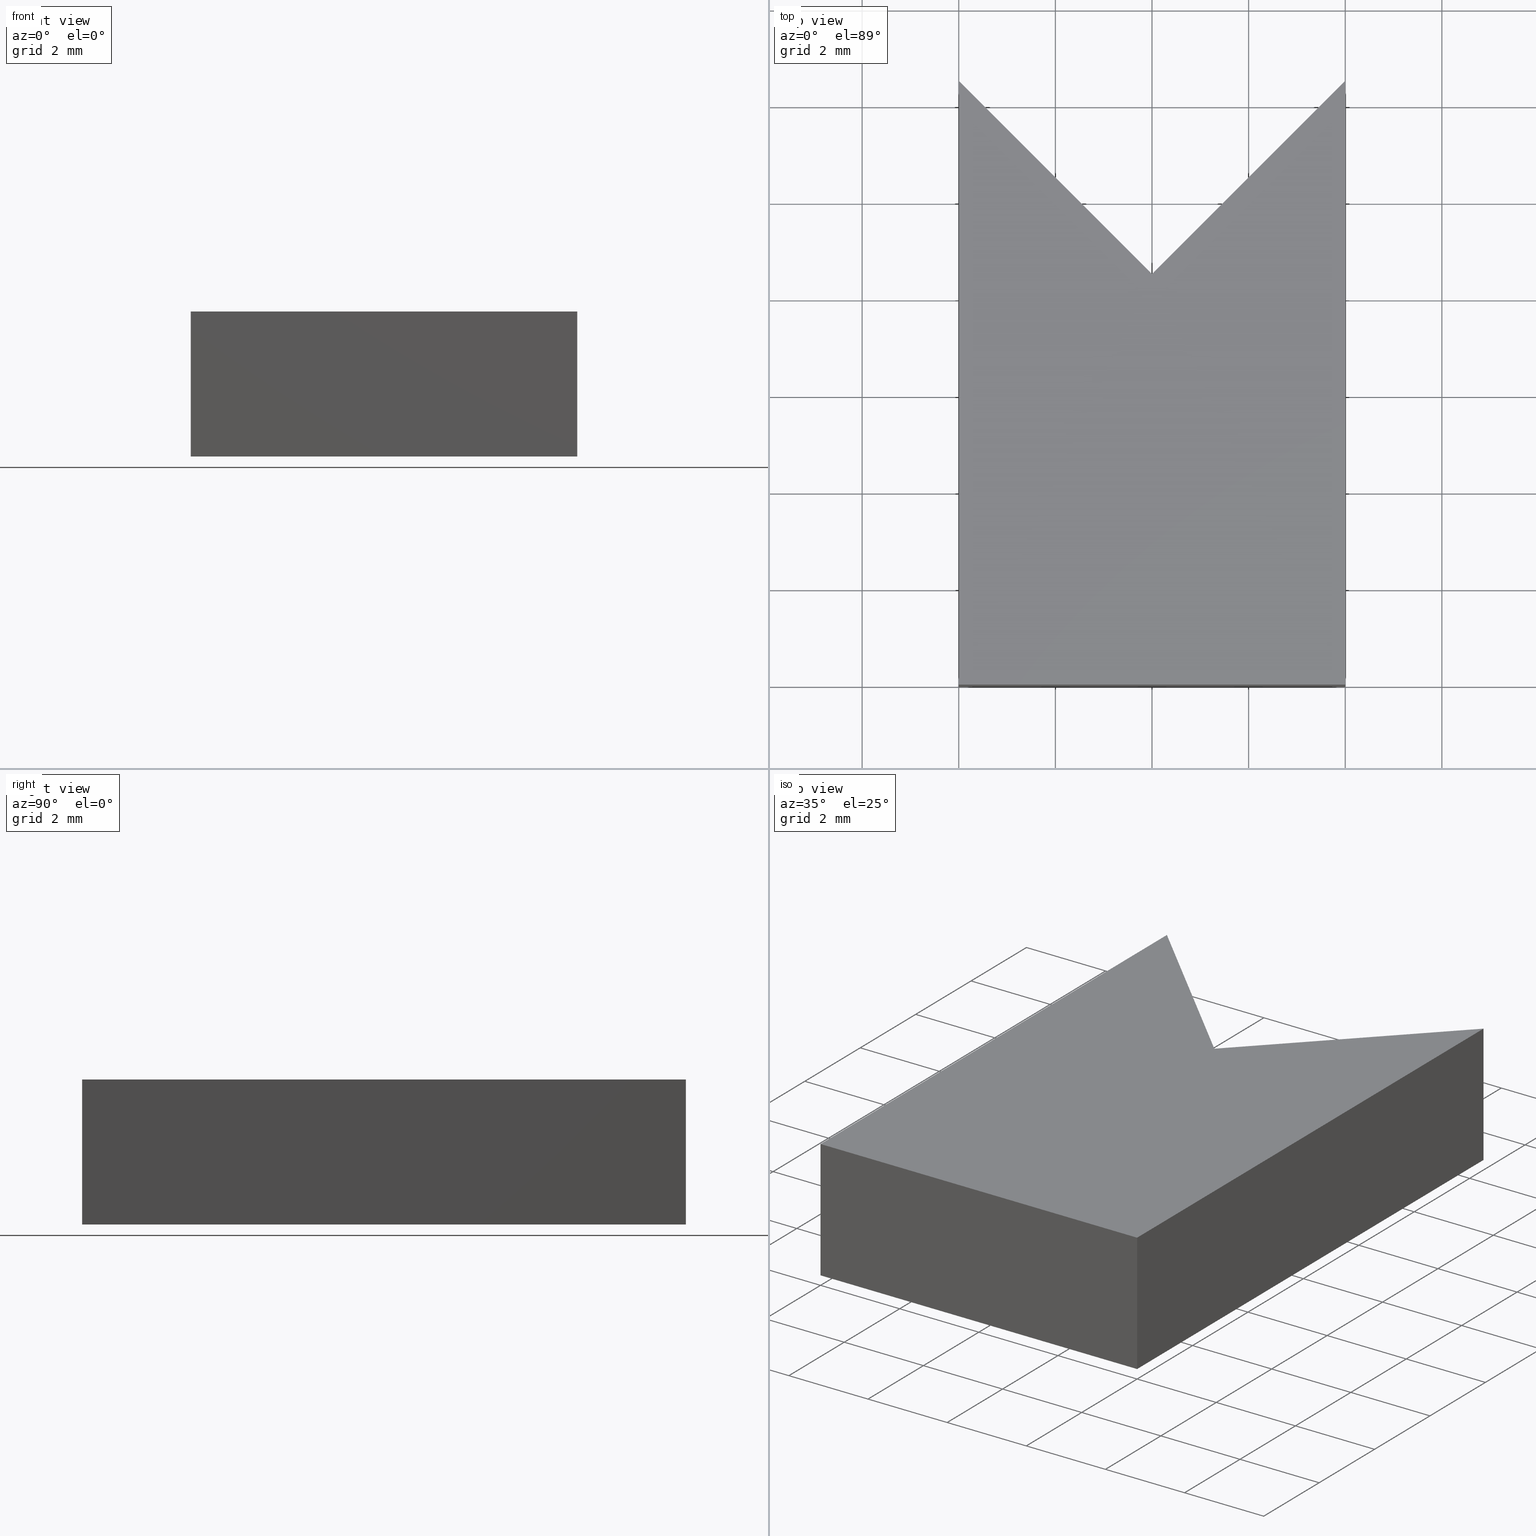
[diagram: canonical four-view strip — front | top / right | iso, engineering-drawing reading convention]
A machine part, canonical four-view strip (front | top / right | iso — engineering-drawing reading convention). The complete STEP part file that produces these views, byte-faithful:
ISO-10303-21;
HEADER;
/* Generated by software containing ST-Developer
 * from STEP Tools, Inc. (www.steptools.com) 
 */

FILE_DESCRIPTION(
/* description */ (''),
/* implementation_level */ '2;1');

FILE_NAME(
/* name */ 
'H:\\Eigene Dateien\\CAD Workspace Vault\\CAD\\E_3_Nocken\\E_3_01_Aufs
chwei\X\DFnocke\\10_Nut\\E_3_01_10_18_00_WKZ-0020.stp',
/* time_stamp */ '2024-06-07T13:04:42+02:00',
/* author */ ('DFischer'),
/* organization */ (''),
/* preprocessor_version */ 'ST-DEVELOPER v18.1',
/* originating_system */ 'Autodesk Inventor 2021',
/* authorisation */ '');

FILE_SCHEMA (('AUTOMOTIVE_DESIGN { 1 0 10303 214 3 1 1 }'));
ENDSEC;

DATA;
#10=MECHANICAL_DESIGN_GEOMETRIC_PRESENTATION_REPRESENTATION('',(#14,#15),
#223);
#11=SHAPE_REPRESENTATION_RELATIONSHIP('SRR','None',#230,#12);
#12=ADVANCED_BREP_SHAPE_REPRESENTATION('',(#13),#222);
#13=MANIFOLD_SOLID_BREP('Volumenk\X\F6rper1',#129);
#14=STYLED_ITEM('',(#240),#127);
#15=STYLED_ITEM('',(#239),#13);
#16=FACE_OUTER_BOUND('',#23,.T.);
#17=FACE_OUTER_BOUND('',#24,.T.);
#18=FACE_OUTER_BOUND('',#25,.T.);
#19=FACE_OUTER_BOUND('',#26,.T.);
#20=FACE_OUTER_BOUND('',#27,.T.);
#21=FACE_OUTER_BOUND('',#28,.T.);
#22=FACE_OUTER_BOUND('',#29,.T.);
#23=EDGE_LOOP('',(#85,#86,#87,#88,#89));
#24=EDGE_LOOP('',(#90,#91,#92,#93));
#25=EDGE_LOOP('',(#94,#95,#96,#97));
#26=EDGE_LOOP('',(#98,#99,#100,#101));
#27=EDGE_LOOP('',(#102,#103,#104,#105));
#28=EDGE_LOOP('',(#106,#107,#108,#109));
#29=EDGE_LOOP('',(#110,#111,#112,#113,#114));
#30=LINE('',#191,#45);
#31=LINE('',#193,#46);
#32=LINE('',#195,#47);
#33=LINE('',#197,#48);
#34=LINE('',#198,#49);
#35=LINE('',#202,#50);
#36=LINE('',#203,#51);
#37=LINE('',#204,#52);
#38=LINE('',#207,#53);
#39=LINE('',#208,#54);
#40=LINE('',#211,#55);
#41=LINE('',#212,#56);
#42=LINE('',#215,#57);
#43=LINE('',#216,#58);
#44=LINE('',#218,#59);
#45=VECTOR('',#160,10.);
#46=VECTOR('',#161,10.);
#47=VECTOR('',#162,10.);
#48=VECTOR('',#163,10.);
#49=VECTOR('',#164,10.);
#50=VECTOR('',#167,10.);
#51=VECTOR('',#168,10.);
#52=VECTOR('',#169,10.);
#53=VECTOR('',#172,10.);
#54=VECTOR('',#173,10.);
#55=VECTOR('',#176,10.);
#56=VECTOR('',#177,10.);
#57=VECTOR('',#180,10.);
#58=VECTOR('',#181,10.);
#59=VECTOR('',#184,10.);
#60=VERTEX_POINT('',#189);
#61=VERTEX_POINT('',#190);
#62=VERTEX_POINT('',#192);
#63=VERTEX_POINT('',#194);
#64=VERTEX_POINT('',#196);
#65=VERTEX_POINT('',#200);
#66=VERTEX_POINT('',#201);
#67=VERTEX_POINT('',#206);
#68=VERTEX_POINT('',#210);
#69=VERTEX_POINT('',#214);
#70=EDGE_CURVE('',#60,#61,#30,.T.);
#71=EDGE_CURVE('',#62,#60,#31,.T.);
#72=EDGE_CURVE('',#63,#62,#32,.T.);
#73=EDGE_CURVE('',#64,#63,#33,.T.);
#74=EDGE_CURVE('',#61,#64,#34,.T.);
#75=EDGE_CURVE('',#65,#66,#35,.T.);
#76=EDGE_CURVE('',#66,#63,#36,.T.);
#77=EDGE_CURVE('',#65,#62,#37,.T.);
#78=EDGE_CURVE('',#66,#67,#38,.T.);
#79=EDGE_CURVE('',#67,#64,#39,.T.);
#80=EDGE_CURVE('',#67,#68,#40,.T.);
#81=EDGE_CURVE('',#68,#61,#41,.T.);
#82=EDGE_CURVE('',#68,#69,#42,.T.);
#83=EDGE_CURVE('',#60,#69,#43,.T.);
#84=EDGE_CURVE('',#69,#65,#44,.T.);
#85=ORIENTED_EDGE('',*,*,#70,.F.);
#86=ORIENTED_EDGE('',*,*,#71,.F.);
#87=ORIENTED_EDGE('',*,*,#72,.F.);
#88=ORIENTED_EDGE('',*,*,#73,.F.);
#89=ORIENTED_EDGE('',*,*,#74,.F.);
#90=ORIENTED_EDGE('',*,*,#75,.T.);
#91=ORIENTED_EDGE('',*,*,#76,.T.);
#92=ORIENTED_EDGE('',*,*,#72,.T.);
#93=ORIENTED_EDGE('',*,*,#77,.F.);
#94=ORIENTED_EDGE('',*,*,#78,.T.);
#95=ORIENTED_EDGE('',*,*,#79,.T.);
#96=ORIENTED_EDGE('',*,*,#73,.T.);
#97=ORIENTED_EDGE('',*,*,#76,.F.);
#98=ORIENTED_EDGE('',*,*,#80,.T.);
#99=ORIENTED_EDGE('',*,*,#81,.T.);
#100=ORIENTED_EDGE('',*,*,#74,.T.);
#101=ORIENTED_EDGE('',*,*,#79,.F.);
#102=ORIENTED_EDGE('',*,*,#82,.T.);
#103=ORIENTED_EDGE('',*,*,#83,.F.);
#104=ORIENTED_EDGE('',*,*,#70,.T.);
#105=ORIENTED_EDGE('',*,*,#81,.F.);
#106=ORIENTED_EDGE('',*,*,#84,.T.);
#107=ORIENTED_EDGE('',*,*,#77,.T.);
#108=ORIENTED_EDGE('',*,*,#71,.T.);
#109=ORIENTED_EDGE('',*,*,#83,.T.);
#110=ORIENTED_EDGE('',*,*,#75,.F.);
#111=ORIENTED_EDGE('',*,*,#84,.F.);
#112=ORIENTED_EDGE('',*,*,#82,.F.);
#113=ORIENTED_EDGE('',*,*,#80,.F.);
#114=ORIENTED_EDGE('',*,*,#78,.F.);
#115=PLANE('',#149);
#116=PLANE('',#150);
#117=PLANE('',#151);
#118=PLANE('',#152);
#119=PLANE('',#153);
#120=PLANE('',#154);
#121=PLANE('',#155);
#122=ADVANCED_FACE('',(#16),#115,.F.);
#123=ADVANCED_FACE('',(#17),#116,.T.);
#124=ADVANCED_FACE('',(#18),#117,.T.);
#125=ADVANCED_FACE('',(#19),#118,.T.);
#126=ADVANCED_FACE('',(#20),#119,.T.);
#127=ADVANCED_FACE('',(#21),#120,.T.);
#128=ADVANCED_FACE('',(#22),#121,.T.);
#129=CLOSED_SHELL('',(#122,#123,#124,#125,#126,#127,#128));
#130=DERIVED_UNIT_ELEMENT(#132,1.);
#131=DERIVED_UNIT_ELEMENT(#225,3.);
#132=(
MASS_UNIT()
NAMED_UNIT(*)
SI_UNIT($,.GRAM.)
);
#133=DERIVED_UNIT((#130,#131));
#134=MEASURE_REPRESENTATION_ITEM('density measure',
POSITIVE_RATIO_MEASURE(8.03),#133);
#135=PROPERTY_DEFINITION_REPRESENTATION(#140,#137);
#136=PROPERTY_DEFINITION_REPRESENTATION(#141,#138);
#137=REPRESENTATION('material name',(#139),#222);
#138=REPRESENTATION('density',(#134),#222);
#139=DESCRIPTIVE_REPRESENTATION_ITEM('1.4301','1.4301');
#140=PROPERTY_DEFINITION('material property','material name',#232);
#141=PROPERTY_DEFINITION('material property','density of part',#232);
#142=DATE_TIME_ROLE('creation_date');
#143=APPLIED_DATE_AND_TIME_ASSIGNMENT(#144,#142,(#232));
#144=DATE_AND_TIME(#145,#146);
#145=CALENDAR_DATE(2011,19,10);
#146=LOCAL_TIME(0,0,0.,#147);
#147=COORDINATED_UNIVERSAL_TIME_OFFSET(0,0,.BEHIND.);
#148=AXIS2_PLACEMENT_3D('placement',#187,#156,#157);
#149=AXIS2_PLACEMENT_3D('',#188,#158,#159);
#150=AXIS2_PLACEMENT_3D('',#199,#165,#166);
#151=AXIS2_PLACEMENT_3D('',#205,#170,#171);
#152=AXIS2_PLACEMENT_3D('',#209,#174,#175);
#153=AXIS2_PLACEMENT_3D('',#213,#178,#179);
#154=AXIS2_PLACEMENT_3D('',#217,#182,#183);
#155=AXIS2_PLACEMENT_3D('',#219,#185,#186);
#156=DIRECTION('axis',(0.,0.,1.));
#157=DIRECTION('refdir',(1.,0.,0.));
#158=DIRECTION('center_axis',(0.,0.,1.));
#159=DIRECTION('ref_axis',(1.,0.,0.));
#160=DIRECTION('',(-1.77635683940025E-16,1.,0.));
#161=DIRECTION('',(1.,0.,0.));
#162=DIRECTION('',(-1.77635683940025E-16,-1.,0.));
#163=DIRECTION('',(-0.707106781186548,0.707106781186547,0.));
#164=DIRECTION('',(-0.707106781186548,-0.707106781186547,0.));
#165=DIRECTION('center_axis',(-1.,1.77635683940025E-16,0.));
#166=DIRECTION('ref_axis',(0.,0.,1.));
#167=DIRECTION('',(1.77635683940025E-16,1.,0.));
#168=DIRECTION('',(0.,0.,-1.));
#169=DIRECTION('',(0.,0.,-1.));
#170=DIRECTION('center_axis',(0.707106781186547,0.707106781186548,0.));
#171=DIRECTION('ref_axis',(0.,0.,-1.));
#172=DIRECTION('',(0.707106781186548,-0.707106781186547,0.));
#173=DIRECTION('',(0.,0.,-1.));
#174=DIRECTION('center_axis',(-0.707106781186547,0.707106781186548,0.));
#175=DIRECTION('ref_axis',(0.,0.,1.));
#176=DIRECTION('',(0.707106781186548,0.707106781186547,0.));
#177=DIRECTION('',(0.,0.,-1.));
#178=DIRECTION('center_axis',(1.,1.77635683940025E-16,0.));
#179=DIRECTION('ref_axis',(0.,0.,-1.));
#180=DIRECTION('',(1.77635683940025E-16,-1.,0.));
#181=DIRECTION('',(0.,0.,1.));
#182=DIRECTION('center_axis',(0.,-1.,0.));
#183=DIRECTION('ref_axis',(0.,0.,-1.));
#184=DIRECTION('',(-1.,0.,0.));
#185=DIRECTION('center_axis',(0.,0.,1.));
#186=DIRECTION('ref_axis',(1.,0.,0.));
#187=CARTESIAN_POINT('',(0.,0.,0.));
#188=CARTESIAN_POINT('Origin',(0.,6.20674614144833,-1.5));
#189=CARTESIAN_POINT('',(4.,-4.8888881406096E-16,-1.5));
#190=CARTESIAN_POINT('',(4.,12.5,-1.5));
#191=CARTESIAN_POINT('',(4.,12.5,-1.5));
#192=CARTESIAN_POINT('',(-4.,-4.8888881406096E-16,-1.5));
#193=CARTESIAN_POINT('',(4.,-4.8888881406096E-16,-1.5));
#194=CARTESIAN_POINT('',(-4.,12.5,-1.5));
#195=CARTESIAN_POINT('',(-4.,-4.8888881406096E-16,-1.5));
#196=CARTESIAN_POINT('',(0.,8.5,-1.5));
#197=CARTESIAN_POINT('',(-4.,12.5,-1.5));
#198=CARTESIAN_POINT('',(0.,8.5,-1.5));
#199=CARTESIAN_POINT('Origin',(-4.,-4.8888881406096E-16,0.));
#200=CARTESIAN_POINT('',(-4.,-4.8888881406096E-16,1.5));
#201=CARTESIAN_POINT('',(-4.,12.5,1.5));
#202=CARTESIAN_POINT('',(-4.,-4.8888881406096E-16,1.5));
#203=CARTESIAN_POINT('',(-4.,12.5,0.));
#204=CARTESIAN_POINT('',(-4.,-4.8888881406096E-16,0.));
#205=CARTESIAN_POINT('Origin',(-4.,12.5,0.));
#206=CARTESIAN_POINT('',(0.,8.5,1.5));
#207=CARTESIAN_POINT('',(-4.,12.5,1.5));
#208=CARTESIAN_POINT('',(0.,8.5,0.));
#209=CARTESIAN_POINT('Origin',(0.,8.5,0.));
#210=CARTESIAN_POINT('',(4.,12.5,1.5));
#211=CARTESIAN_POINT('',(0.,8.5,1.5));
#212=CARTESIAN_POINT('',(4.,12.5,0.));
#213=CARTESIAN_POINT('Origin',(4.,12.5,0.));
#214=CARTESIAN_POINT('',(4.,-4.8888881406096E-16,1.5));
#215=CARTESIAN_POINT('',(4.,12.5,1.5));
#216=CARTESIAN_POINT('',(4.,-4.8888881406096E-16,0.));
#217=CARTESIAN_POINT('Origin',(4.,-4.8888881406096E-16,0.));
#218=CARTESIAN_POINT('',(4.,-4.8888881406096E-16,1.5));
#219=CARTESIAN_POINT('Origin',(0.,6.20674614144833,1.5));
#220=UNCERTAINTY_MEASURE_WITH_UNIT(LENGTH_MEASURE(0.01),#224,
'DISTANCE_ACCURACY_VALUE',
'Maximum model space distance between geometric entities at asserted c
onnectivities');
#221=UNCERTAINTY_MEASURE_WITH_UNIT(LENGTH_MEASURE(0.01),#224,
'DISTANCE_ACCURACY_VALUE',
'Maximum model space distance between geometric entities at asserted c
onnectivities');
#222=(
GEOMETRIC_REPRESENTATION_CONTEXT(3)
GLOBAL_UNCERTAINTY_ASSIGNED_CONTEXT((#220))
GLOBAL_UNIT_ASSIGNED_CONTEXT((#224,#226,#227))
REPRESENTATION_CONTEXT('','3D')
);
#223=(
GEOMETRIC_REPRESENTATION_CONTEXT(3)
GLOBAL_UNCERTAINTY_ASSIGNED_CONTEXT((#221))
GLOBAL_UNIT_ASSIGNED_CONTEXT((#224,#226,#227))
REPRESENTATION_CONTEXT('','3D')
);
#224=(
LENGTH_UNIT()
NAMED_UNIT(*)
SI_UNIT(.MILLI.,.METRE.)
);
#225=(
LENGTH_UNIT()
NAMED_UNIT(*)
SI_UNIT(.CENTI.,.METRE.)
);
#226=(
NAMED_UNIT(*)
PLANE_ANGLE_UNIT()
SI_UNIT($,.RADIAN.)
);
#227=(
NAMED_UNIT(*)
SI_UNIT($,.STERADIAN.)
SOLID_ANGLE_UNIT()
);
#228=SHAPE_DEFINITION_REPRESENTATION(#229,#230);
#229=PRODUCT_DEFINITION_SHAPE('',$,#232);
#230=SHAPE_REPRESENTATION('',(#148),#222);
#231=PRODUCT_DEFINITION_CONTEXT('part definition',#236,'design');
#232=PRODUCT_DEFINITION('WKZ-0020','E_3_01_10_18_00_WKZ-0020',#233,#231);
#233=PRODUCT_DEFINITION_FORMATION('',$,#238);
#234=PRODUCT_RELATED_PRODUCT_CATEGORY('E_3_01_10_18_00_WKZ-0020',
'E_3_01_10_18_00_WKZ-0020',(#238));
#235=APPLICATION_PROTOCOL_DEFINITION('international standard',
'automotive_design',2009,#236);
#236=APPLICATION_CONTEXT(
'Core Data for Automotive Mechanical Design Process');
#237=PRODUCT_CONTEXT('part definition',#236,'mechanical');
#238=PRODUCT('WKZ-0020','E_3_01_10_18_00_WKZ-0020',$,(#237));
#239=PRESENTATION_STYLE_ASSIGNMENT((#241));
#240=PRESENTATION_STYLE_ASSIGNMENT((#242));
#241=SURFACE_STYLE_USAGE(.BOTH.,#245);
#242=SURFACE_STYLE_USAGE(.BOTH.,#246);
#243=SURFACE_STYLE_RENDERING_WITH_PROPERTIES($,#253,(#244));
#244=SURFACE_STYLE_TRANSPARENT(0.);
#245=SURFACE_SIDE_STYLE('',(#247,#243));
#246=SURFACE_SIDE_STYLE('',(#248));
#247=SURFACE_STYLE_FILL_AREA(#249);
#248=SURFACE_STYLE_FILL_AREA(#250);
#249=FILL_AREA_STYLE('',(#251));
#250=FILL_AREA_STYLE('',(#252));
#251=FILL_AREA_STYLE_COLOUR('',#253);
#252=FILL_AREA_STYLE_COLOUR('',#254);
#253=COLOUR_RGB('',0.92156862745098,0.92156862745098,0.92156862745098);
#254=COLOUR_RGB('',0.16078431372549,0.16078431372549,0.16078431372549);
ENDSEC;
END-ISO-10303-21;
